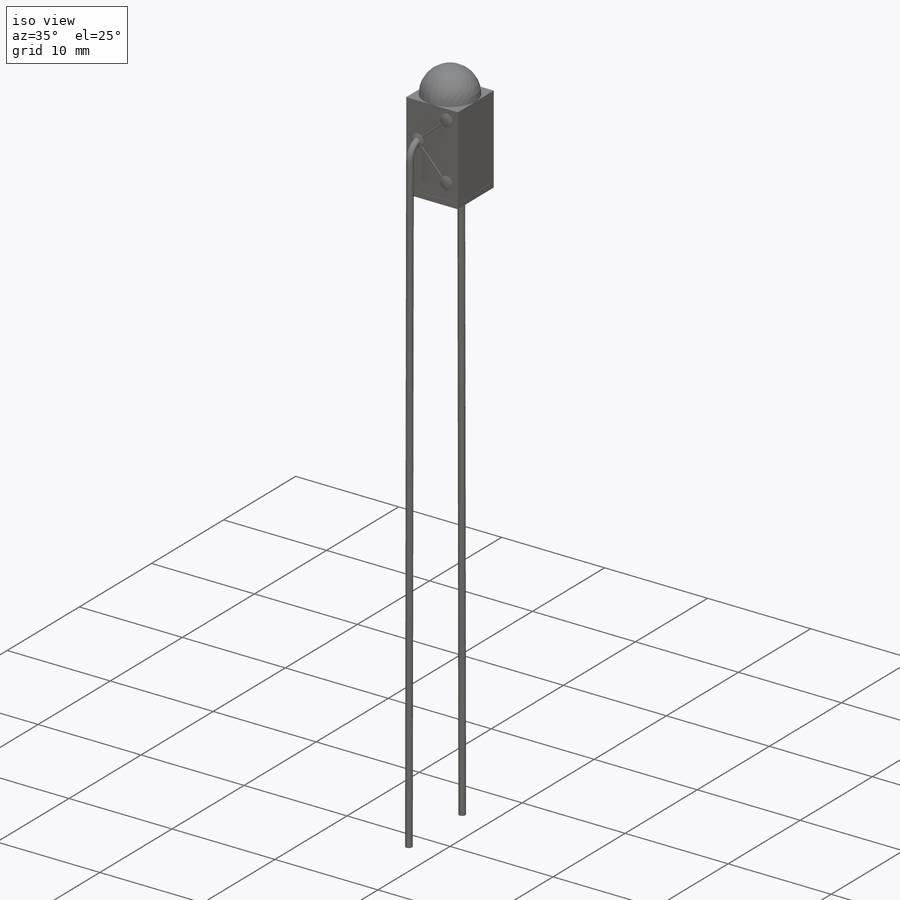
[diagram: iso view]
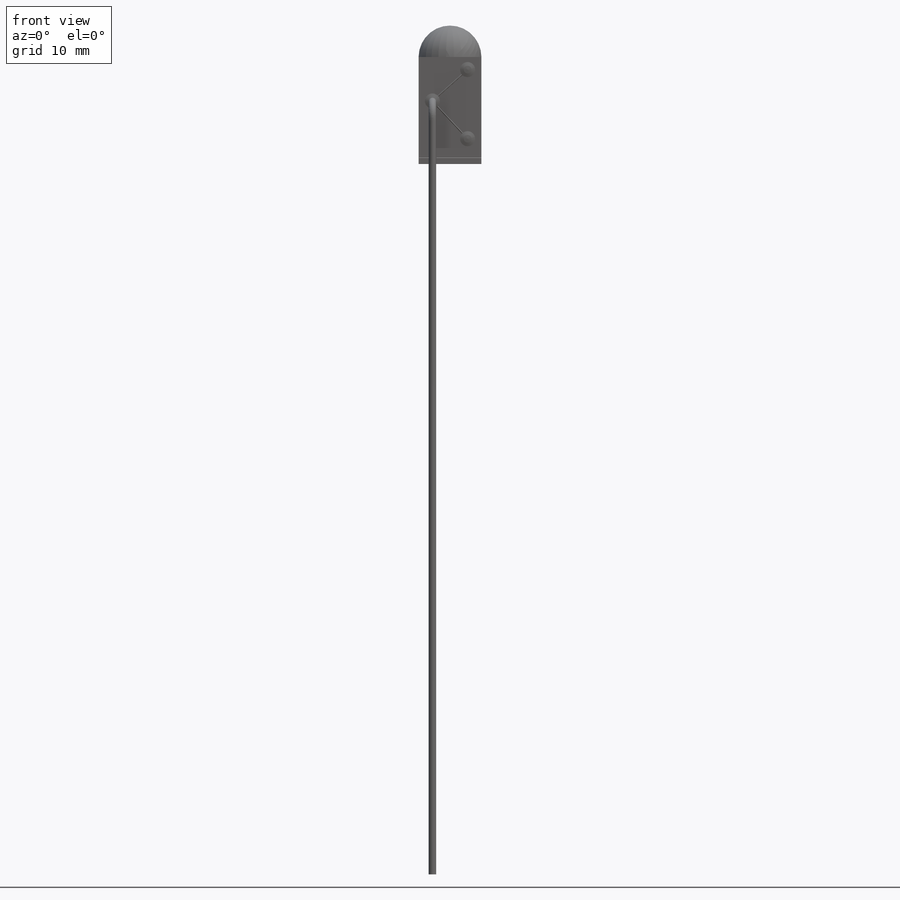
[diagram: front view]
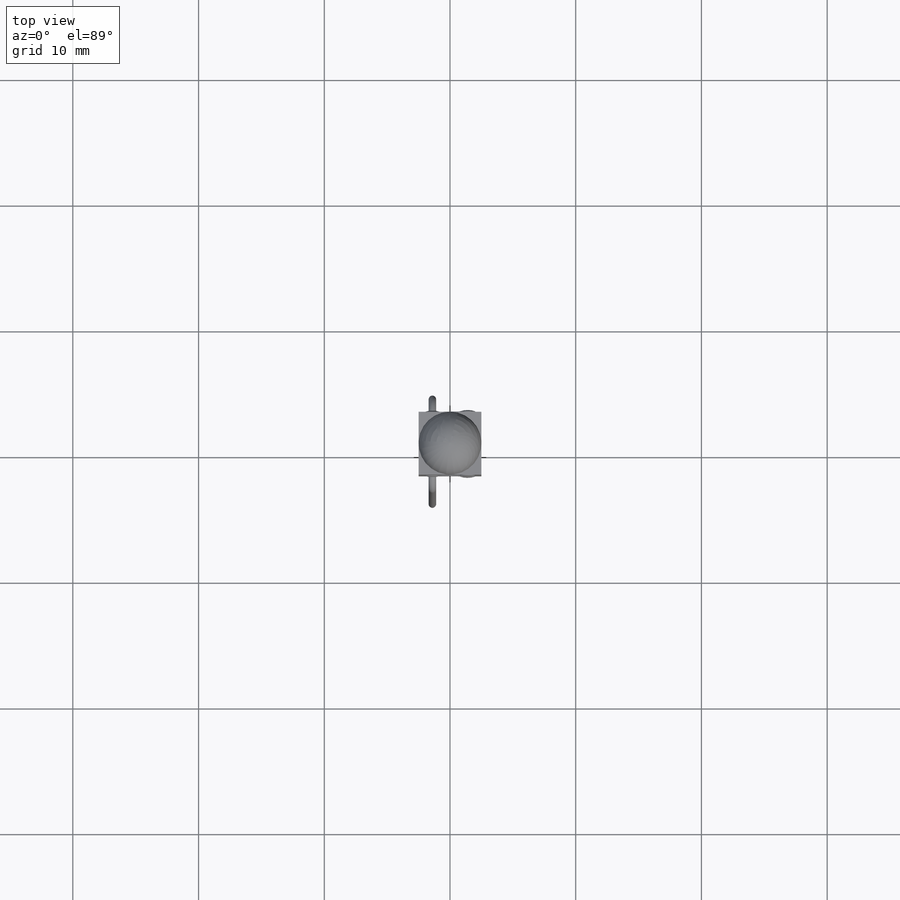
[diagram: top view]
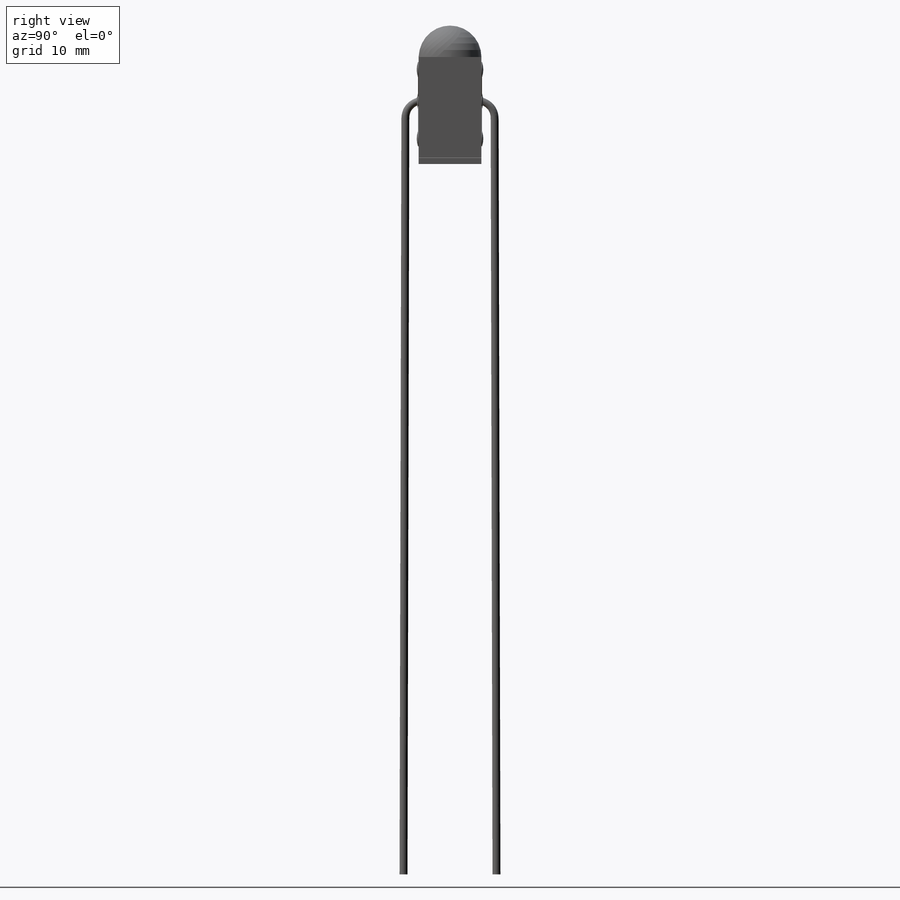
[diagram: right view]
SOLIDWORKS PART (.sldprt)
format: sldprt  version: not decoded by parser v0  size: 531,456 bytes
history: native  units: mm
features: plane x14, sketch x11, dome x6, extrude x4, mirror x3, sweep x2, material x1, pattern_linear x1, revolve x1 (+13 scaffold rows collapsed)
feature tree (56):
  scaffold x13  (default folders/planes/origin — collapsed)
  material  "Material <not specified>"
  sketch  "Sketch1"  dims[c1.D1=~27.482152mm c1.D2=~36.551262mm c2.D1=5.0mm c2.D2=110.0mm]
  extrude  "Boss-Extrude1"  Depth=3mm
  plane  "Plane1"  Offset=1.2mm
  pattern_linear  "LPattern3"  Count1=2 Count2=1 Spacing1=3.0001mm Spacing2=2.5mm
  plane  "Plane16"  Offset=0mm
  plane  "Plane17"  Offset=0.01mm
  plane  "Plane25"  Offset=0.0001mm
  sketch  "Sketch2"  dims[c1.D1=5.0mm c2.D1=90.0deg c2.D2=5.0mm]
  extrude  "Boss-Extrude2"  Depth=0.5mm
  sketch  "Sketch6"  dims[D1=~2.560218mm]
  sketch  "Sketch22"  dims[D1=5.0mm D2=5.0mm]
  extrude  "Boss-Extrude10"  Depth=2mm
  plane  "Plane26"  Offset=0.0001mm
  sketch  "Sketch7"  dims[c1.D1=~0.606695mm c1.D3=~0.665262mm c2.D1=1.1mm c2.D2=1.1mm]
  extrude  "Boss-Extrude6"  Depth=0.05mm
  plane  "Plane18"  Offset=0mm
  sketch  "Sketch8"
  dome  "Dome8"
  dome  "Dome9"
  dome  "Dome10"
  plane  "Plane19"
  sketch  "Sketch9"  dims[c1.D1=0.1mm c2.D1=0.1mm]
  plane  "Plane21"  Offset=0mm
  plane  "Plane22"  Offset=0.95mm
  sweep  "Sweep1"
  plane  "Plane27"  Offset=0.02mm
  sketch  "Sketch23"  dims[D1=5.0mm D2=5.0mm]
  plane  "Plane28"  Offset=0.001mm
  sketch  "Sketch24"  dims[D1=~0.291642mm]
  plane  "Plane29"
  sketch  "Sketch26"  dims[D1=60.0mm]
  sweep  "Sweep3"
  plane  "Plane30"
  mirror  "Mirror2"
  mirror  "Mirror3"
  dome  "Dome16"
  dome  "Dome17"
  dome  "Dome23"
  mirror  "Mirror4"
  plane  "Plane31"
  sketch  "Sketch29"  dims[D1=~2.546186mm]
  revolve  "Revolve2"  Angle=360deg
decode coverage: 16 of 28 modeling features carry decoded parameters
note: ~ marks probable driven/reference dimensions
note: suppression state not decoded; provenance and decode notes live in map.json
